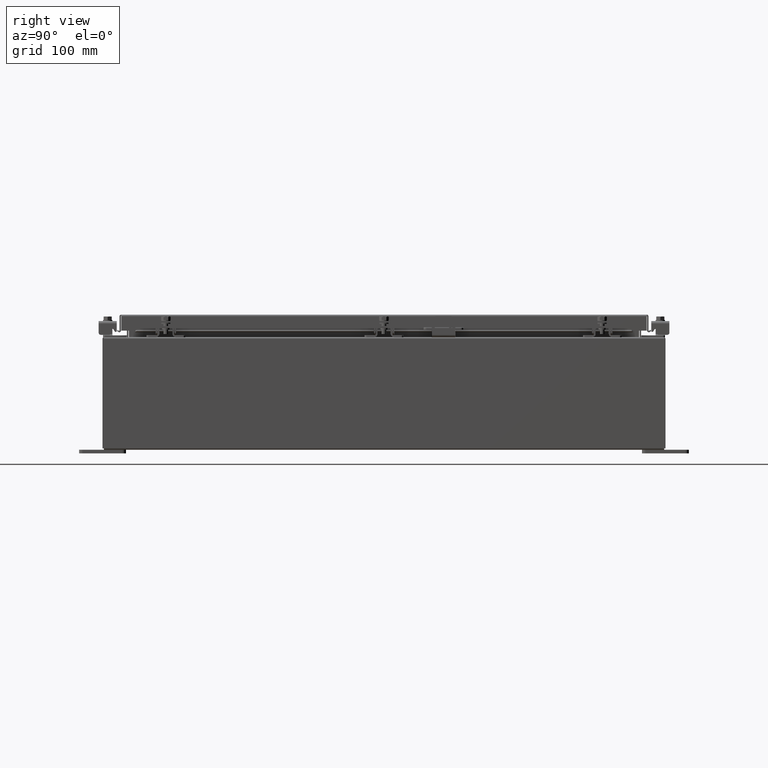
[diagram: clean part render]
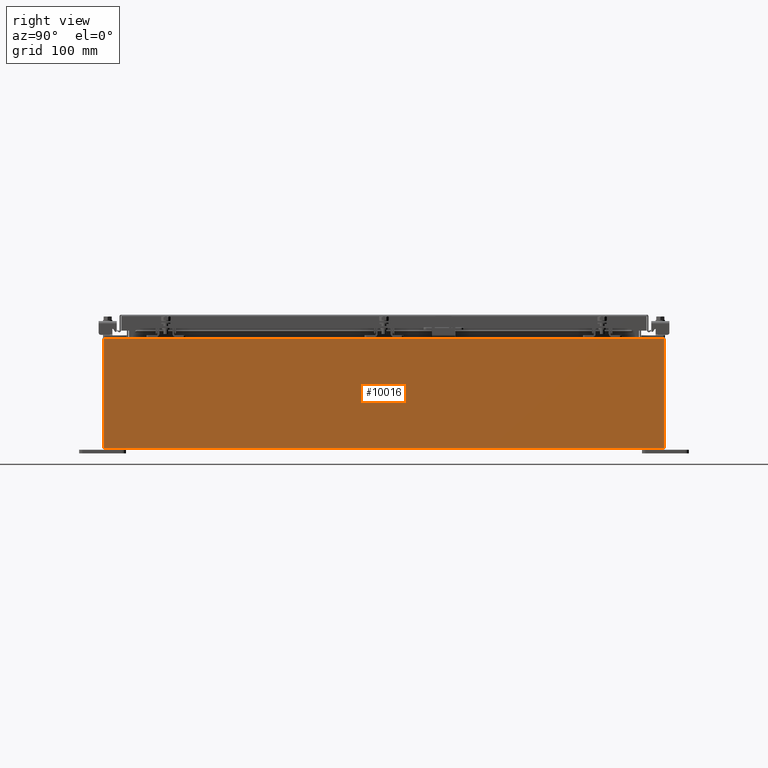
[diagram: same view with one face highlighted and labeled with its STEP entity id]
A machine part, right view. The second image highlights one B-rep face of the part: STEP entity #10016.
In plain terms, the highlighted planar face has unit normal (-1, 0, 0).
Its self-contained STEP definition (entity closure, byte-faithful):
#959 = ORIENTED_EDGE ( 'NONE', *, *, #34193, .T. ) ;
#3344 = VERTEX_POINT ( 'NONE', #25393 ) ;
#3584 = CARTESIAN_POINT ( 'NONE',  ( 10.00000000000002000, 14.92530000000000700, 5.837600000000001000 ) ) ;
#3647 = LINE ( 'NONE', #11138, #33848 ) ;
#4297 = CARTESIAN_POINT ( 'NONE',  ( 10.00000000000000000, 14.92530000000000500, -3.345627304943080600E-014 ) ) ;
#5473 = EDGE_CURVE ( 'NONE', #22349, #12729, #24121, .T. ) ;
#7152 = FACE_OUTER_BOUND ( 'NONE', #24950, .T. ) ;
#7358 = VECTOR ( 'NONE', #16318, 39.37007874015748100 ) ;
#7374 = VECTOR ( 'NONE', #34112, 39.37007874015748100 ) ;
#7577 = VECTOR ( 'NONE', #21846, 39.37007874015748100 ) ;
#10016 = ADVANCED_FACE ( 'NONE', ( #7152 ), #26134, .F. ) ;
#11138 = CARTESIAN_POINT ( 'NONE',  ( 10.00000000000002000, 14.92530000000000700, 5.837600000000001000 ) ) ;
#11506 = DIRECTION ( 'NONE',  ( 3.319545939341922000E-015, 0.0000000000000000000, 1.000000000000000000 ) ) ;
#12729 = VERTEX_POINT ( 'NONE', #3584 ) ;
#16318 = DIRECTION ( 'NONE',  ( -0.0000000000000000000, -1.000000000000000000, -0.0000000000000000000 ) ) ;
#19414 = AXIS2_PLACEMENT_3D ( 'NONE', #23204, #29046, #11506 ) ;
#19416 = CARTESIAN_POINT ( 'NONE',  ( 10.00000000000002000, -14.92529999999999800, 5.837600000000001000 ) ) ;
#21009 = EDGE_CURVE ( 'NONE', #36236, #3344, #30724, .T. ) ;
#21846 = DIRECTION ( 'NONE',  ( 3.319545939341922800E-015, 0.0000000000000000000, 1.000000000000000000 ) ) ;
#22349 = VERTEX_POINT ( 'NONE', #34812 ) ;
#22350 = CARTESIAN_POINT ( 'NONE',  ( 10.00000000000000000, -14.92529999999999600, -3.345627304943080600E-014 ) ) ;
#22960 = LINE ( 'NONE', #36820, #7358 ) ;
#23204 = CARTESIAN_POINT ( 'NONE',  ( 10.00000000000000000, 0.0000000000000000000, -3.345627304943080600E-014 ) ) ;
#24121 = LINE ( 'NONE', #4297, #7577 ) ;
#24320 = ORIENTED_EDGE ( 'NONE', *, *, #21009, .T. ) ;
#24589 = ORIENTED_EDGE ( 'NONE', *, *, #5473, .T. ) ;
#24950 = EDGE_LOOP ( 'NONE', ( #959, #24320, #30105, #24589 ) ) ;
#25393 = CARTESIAN_POINT ( 'NONE',  ( 10.00000000000000000, -14.92529999999999600, 0.01299999999999985900 ) ) ;
#26134 = PLANE ( 'NONE',  #19414 ) ;
#29046 = DIRECTION ( 'NONE',  ( -1.000000000000000000, 0.0000000000000000000, 3.319545939341922000E-015 ) ) ;
#30105 = ORIENTED_EDGE ( 'NONE', *, *, #32264, .F. ) ;
#30724 = LINE ( 'NONE', #22350, #7374 ) ;
#32264 = EDGE_CURVE ( 'NONE', #22349, #3344, #22960, .T. ) ;
#33848 = VECTOR ( 'NONE', #37582, 39.37007874015748100 ) ;
#34112 = DIRECTION ( 'NONE',  ( -3.319545939341922800E-015, 0.0000000000000000000, -1.000000000000000000 ) ) ;
#34193 = EDGE_CURVE ( 'NONE', #12729, #36236, #3647, .T. ) ;
#34812 = CARTESIAN_POINT ( 'NONE',  ( 10.00000000000000000, 14.92530000000000500, 0.01299999999999986400 ) ) ;
#36236 = VERTEX_POINT ( 'NONE', #19416 ) ;
#36820 = CARTESIAN_POINT ( 'NONE',  ( 10.00000000000000000, -14.92529999999999600, 0.01299999999999986400 ) ) ;
#37582 = DIRECTION ( 'NONE',  ( -0.0000000000000000000, -1.000000000000000000, -0.0000000000000000000 ) ) ;